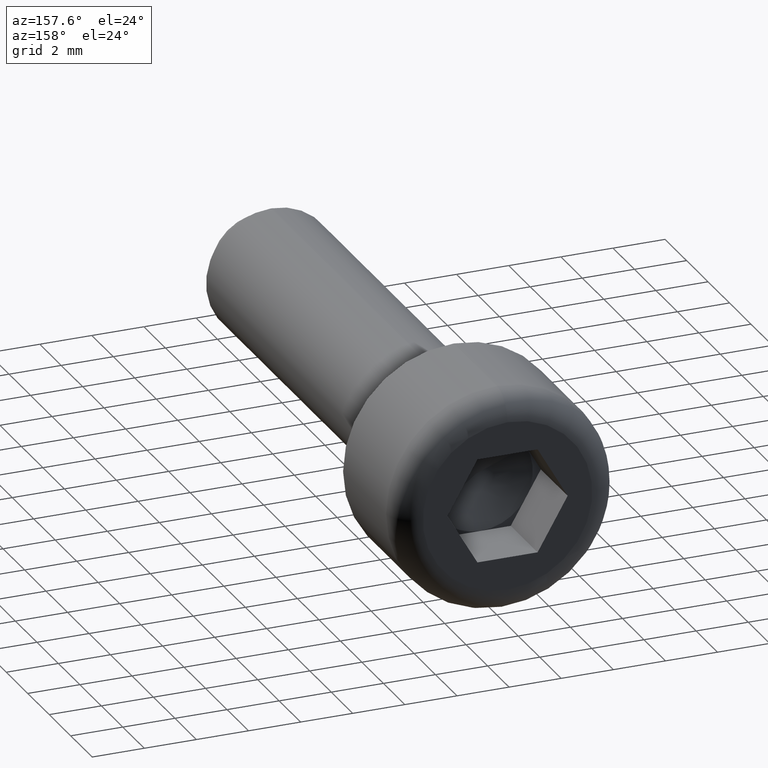
[diagram: clean part render]
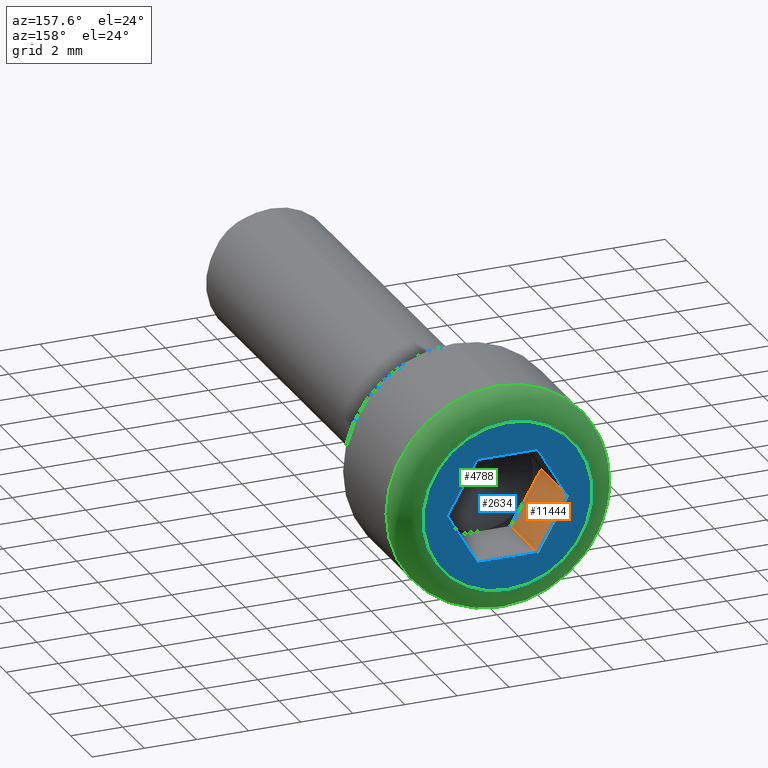
[diagram: same view with three faces highlighted in distinct colors, each labeled with its STEP entity id]
A machine part, auxiliary view with three faces highlighted in distinct colors.
Their STEP definitions:

[orange] entity #11444 — the highlighted planar face has unit normal (-0.866, 0, -0.5).
#218 = DIRECTION ( 'NONE',  ( -0.5000000000000001100, 0.0000000000000000000, 0.8660254037844384900 ) ) ;
#909 = LINE ( 'NONE', #4872, #3422 ) ;
#960 = VERTEX_POINT ( 'NONE', #7453 ) ;
#1403 = CARTESIAN_POINT ( 'NONE',  ( -2.309401076758503400, 2.500000000000000000, -4.369770171795340300E-016 ) ) ;
#2224 = CARTESIAN_POINT ( 'NONE',  ( -1.154700538379251700, 2.500000000000000000, -2.000000000000000000 ) ) ;
#2790 = CARTESIAN_POINT ( 'NONE',  ( -1.732050807568877000, 2.499999999999996900, -1.000000000000000200 ) ) ;
#3422 = VECTOR ( 'NONE', #7286, 1000.000000000000200 ) ;
#3601 = LINE ( 'NONE', #2224, #7728 ) ;
#4149 = ORIENTED_EDGE ( 'NONE', *, *, #10570, .F. ) ;
#4674 = DIRECTION ( 'NONE',  ( -0.5000000000000001100, 0.0000000000000000000, 0.8660254037844384900 ) ) ;
#4872 = CARTESIAN_POINT ( 'NONE',  ( -1.154700538379251700, 5.000000000000000000, -2.000000000000000000 ) ) ;
#5306 = CARTESIAN_POINT ( 'NONE',  ( -1.154700538379251700, 2.500000000000000000, -2.000000000000000000 ) ) ;
#5507 = CARTESIAN_POINT ( 'NONE',  ( -1.154700538379251700, 2.500000000000000000, -2.000000000000000000 ) ) ;
#6298 = AXIS2_PLACEMENT_3D ( 'NONE', #5306, #15351, #13994 ) ;
#6488 = CARTESIAN_POINT ( 'NONE',  ( -1.154700538379251700, 2.500000000000000000, -2.000000000000000000 ) ) ;
#6663 = PLANE ( 'NONE',  #6298 ) ;
#6702 = ORIENTED_EDGE ( 'NONE', *, *, #12668, .T. ) ;
#7286 = DIRECTION ( 'NONE',  ( -0.5000000000000001100, 0.0000000000000000000, 0.8660254037844384900 ) ) ;
#7453 = CARTESIAN_POINT ( 'NONE',  ( -2.309401076758503400, 5.000000000000000000, -4.369770171795340300E-016 ) ) ;
#7728 = VECTOR ( 'NONE', #4674, 1000.000000000000200 ) ;
#7754 = EDGE_CURVE ( 'NONE', #15224, #960, #9740, .T. ) ;
#7759 = VECTOR ( 'NONE', #218, 1000.000000000000200 ) ;
#7800 = VERTEX_POINT ( 'NONE', #8200 ) ;
#7913 = VECTOR ( 'NONE', #15603, 1000.000000000000000 ) ;
#7994 = VECTOR ( 'NONE', #10561, 1000.000000000000000 ) ;
#8200 = CARTESIAN_POINT ( 'NONE',  ( -1.154700538379251700, 2.500000000000000000, -2.000000000000000000 ) ) ;
#9456 = CARTESIAN_POINT ( 'NONE',  ( -2.309401076758503400, 2.500000000000000000, -4.369770171795340300E-016 ) ) ;
#9740 = LINE ( 'NONE', #9456, #7994 ) ;
#9888 = ORIENTED_EDGE ( 'NONE', *, *, #11750, .T. ) ;
#10480 = CARTESIAN_POINT ( 'NONE',  ( -1.154700538379251700, 5.000000000000000000, -2.000000000000000000 ) ) ;
#10561 = DIRECTION ( 'NONE',  ( -0.0000000000000000000, 1.000000000000000000, -0.0000000000000000000 ) ) ;
#10570 = EDGE_CURVE ( 'NONE', #13285, #15224, #12247, .T. ) ;
#10597 = ORIENTED_EDGE ( 'NONE', *, *, #7754, .F. ) ;
#11227 = LINE ( 'NONE', #5507, #7913 ) ;
#11444 = ADVANCED_FACE ( 'NONE', ( #14534 ), #6663, .F. ) ;
#11750 = EDGE_CURVE ( 'NONE', #14991, #960, #909, .T. ) ;
#12209 = ORIENTED_EDGE ( 'NONE', *, *, #12385, .F. ) ;
#12247 = LINE ( 'NONE', #6488, #7759 ) ;
#12385 = EDGE_CURVE ( 'NONE', #7800, #13285, #3601, .T. ) ;
#12668 = EDGE_CURVE ( 'NONE', #7800, #14991, #11227, .T. ) ;
#13285 = VERTEX_POINT ( 'NONE', #2790 ) ;
#13298 = EDGE_LOOP ( 'NONE', ( #9888, #10597, #4149, #12209, #6702 ) ) ;
#13994 = DIRECTION ( 'NONE',  ( -0.5000000000000002200, 0.0000000000000000000, 0.8660254037844384900 ) ) ;
#14534 = FACE_OUTER_BOUND ( 'NONE', #13298, .T. ) ;
#14991 = VERTEX_POINT ( 'NONE', #10480 ) ;
#15224 = VERTEX_POINT ( 'NONE', #1403 ) ;
#15351 = DIRECTION ( 'NONE',  ( -0.8660254037844386000, 0.0000000000000000000, -0.5000000000000003300 ) ) ;
#15603 = DIRECTION ( 'NONE',  ( -0.0000000000000000000, 1.000000000000000000, -0.0000000000000000000 ) ) ;

[blue] entity #2634 — the highlighted planar face has unit normal (0, 1, 0).
#264 = CARTESIAN_POINT ( 'NONE',  ( 0.0000000000000000000, 5.000000000000000000, 0.0000000000000000000 ) ) ;
#437 = CARTESIAN_POINT ( 'NONE',  ( 0.0000000000000000000, 5.000000000000000000, 3.250000000000000400 ) ) ;
#909 = LINE ( 'NONE', #4872, #3422 ) ;
#960 = VERTEX_POINT ( 'NONE', #7453 ) ;
#1654 = VERTEX_POINT ( 'NONE', #437 ) ;
#1670 = VECTOR ( 'NONE', #5059, 1000.000000000000200 ) ;
#2090 = EDGE_CURVE ( 'NONE', #9695, #9819, #5461, .T. ) ;
#2251 = DIRECTION ( 'NONE',  ( 0.5000000000000002200, 0.0000000000000000000, 0.8660254037844386000 ) ) ;
#2634 = ADVANCED_FACE ( 'NONE', ( #5666, #12867 ), #12466, .T. ) ;
#2838 = ORIENTED_EDGE ( 'NONE', *, *, #2090, .F. ) ;
#3103 = LINE ( 'NONE', #4794, #4850 ) ;
#3381 = VERTEX_POINT ( 'NONE', #9967 ) ;
#3422 = VECTOR ( 'NONE', #7286, 1000.000000000000200 ) ;
#3518 = ORIENTED_EDGE ( 'NONE', *, *, #10987, .F. ) ;
#4384 = LINE ( 'NONE', #8754, #1670 ) ;
#4390 = EDGE_CURVE ( 'NONE', #3381, #14991, #13245, .T. ) ;
#4405 = EDGE_CURVE ( 'NONE', #1654, #1654, #9905, .T. ) ;
#4794 = CARTESIAN_POINT ( 'NONE',  ( -1.154700538379251000, 5.000000000000000000, 2.000000000000000000 ) ) ;
#4850 = VECTOR ( 'NONE', #13633, 1000.000000000000000 ) ;
#4872 = CARTESIAN_POINT ( 'NONE',  ( -1.154700538379251700, 5.000000000000000000, -2.000000000000000000 ) ) ;
#5059 = DIRECTION ( 'NONE',  ( -0.5000000000000001100, 0.0000000000000000000, -0.8660254037844384900 ) ) ;
#5124 = DIRECTION ( 'NONE',  ( 0.5000000000000001100, 0.0000000000000000000, -0.8660254037844384900 ) ) ;
#5237 = ORIENTED_EDGE ( 'NONE', *, *, #15144, .F. ) ;
#5412 = ORIENTED_EDGE ( 'NONE', *, *, #4405, .T. ) ;
#5461 = LINE ( 'NONE', #10082, #10909 ) ;
#5666 = FACE_BOUND ( 'NONE', #6566, .T. ) ;
#6214 = CARTESIAN_POINT ( 'NONE',  ( -1.154700538379251000, 5.000000000000000000, 2.000000000000000000 ) ) ;
#6566 = EDGE_LOOP ( 'NONE', ( #7494, #3518, #7768, #13869, #5237, #2838 ) ) ;
#6975 = LINE ( 'NONE', #8513, #11259 ) ;
#6989 = VERTEX_POINT ( 'NONE', #6214 ) ;
#7286 = DIRECTION ( 'NONE',  ( -0.5000000000000001100, 0.0000000000000000000, 0.8660254037844384900 ) ) ;
#7321 = CARTESIAN_POINT ( 'NONE',  ( 1.154700538379250800, 5.000000000000000000, -2.000000000000000400 ) ) ;
#7453 = CARTESIAN_POINT ( 'NONE',  ( -2.309401076758503400, 5.000000000000000000, -4.369770171795340300E-016 ) ) ;
#7494 = ORIENTED_EDGE ( 'NONE', *, *, #7973, .F. ) ;
#7652 = DIRECTION ( 'NONE',  ( 0.0000000000000000000, 1.000000000000000000, 0.0000000000000000000 ) ) ;
#7768 = ORIENTED_EDGE ( 'NONE', *, *, #11750, .F. ) ;
#7862 = AXIS2_PLACEMENT_3D ( 'NONE', #264, #10180, #8916 ) ;
#7973 = EDGE_CURVE ( 'NONE', #6989, #9695, #3103, .T. ) ;
#8513 = CARTESIAN_POINT ( 'NONE',  ( -2.309401076758503400, 5.000000000000000000, -4.369770171795340300E-016 ) ) ;
#8662 = DIRECTION ( 'NONE',  ( 0.0000000000000000000, 0.0000000000000000000, 1.000000000000000000 ) ) ;
#8754 = CARTESIAN_POINT ( 'NONE',  ( 2.309401076758503400, 5.000000000000000000, 2.540179005726034300E-016 ) ) ;
#8916 = DIRECTION ( 'NONE',  ( 0.0000000000000000000, -0.0000000000000000000, 1.000000000000000000 ) ) ;
#8963 = CARTESIAN_POINT ( 'NONE',  ( 2.309401076758503400, 5.000000000000000000, 2.540179005726034300E-016 ) ) ;
#9603 = CARTESIAN_POINT ( 'NONE',  ( 1.154700538379252100, 5.000000000000000000, 2.000000000000000000 ) ) ;
#9695 = VERTEX_POINT ( 'NONE', #9603 ) ;
#9819 = VERTEX_POINT ( 'NONE', #8963 ) ;
#9905 = CIRCLE ( 'NONE', #10132, 3.250000000000000400 ) ;
#9967 = CARTESIAN_POINT ( 'NONE',  ( 1.154700538379250800, 5.000000000000000000, -2.000000000000000400 ) ) ;
#10082 = CARTESIAN_POINT ( 'NONE',  ( 1.154700538379251700, 5.000000000000000000, 2.000000000000000000 ) ) ;
#10132 = AXIS2_PLACEMENT_3D ( 'NONE', #12500, #7652, #8662 ) ;
#10180 = DIRECTION ( 'NONE',  ( 0.0000000000000000000, 1.000000000000000000, 0.0000000000000000000 ) ) ;
#10480 = CARTESIAN_POINT ( 'NONE',  ( -1.154700538379251700, 5.000000000000000000, -2.000000000000000000 ) ) ;
#10909 = VECTOR ( 'NONE', #5124, 1000.000000000000200 ) ;
#10987 = EDGE_CURVE ( 'NONE', #960, #6989, #6975, .T. ) ;
#11259 = VECTOR ( 'NONE', #2251, 999.9999999999998900 ) ;
#11750 = EDGE_CURVE ( 'NONE', #14991, #960, #909, .T. ) ;
#12335 = DIRECTION ( 'NONE',  ( -1.000000000000000000, 0.0000000000000000000, 1.877893248421449800E-016 ) ) ;
#12466 = PLANE ( 'NONE',  #7862 ) ;
#12500 = CARTESIAN_POINT ( 'NONE',  ( 0.0000000000000000000, 5.000000000000000000, 0.0000000000000000000 ) ) ;
#12867 = FACE_OUTER_BOUND ( 'NONE', #15787, .T. ) ;
#12869 = VECTOR ( 'NONE', #12335, 1000.000000000000000 ) ;
#13245 = LINE ( 'NONE', #7321, #12869 ) ;
#13633 = DIRECTION ( 'NONE',  ( 1.000000000000000000, 0.0000000000000000000, 0.0000000000000000000 ) ) ;
#13869 = ORIENTED_EDGE ( 'NONE', *, *, #4390, .F. ) ;
#14991 = VERTEX_POINT ( 'NONE', #10480 ) ;
#15144 = EDGE_CURVE ( 'NONE', #9819, #3381, #4384, .T. ) ;
#15787 = EDGE_LOOP ( 'NONE', ( #5412 ) ) ;

[green] entity #4788 — the highlighted toroidal blend (fillet) surface has major radius 3.25 mm and minor (blend) radius 1 mm.
#437 = CARTESIAN_POINT ( 'NONE',  ( 0.0000000000000000000, 5.000000000000000000, 3.250000000000000400 ) ) ;
#1654 = VERTEX_POINT ( 'NONE', #437 ) ;
#2125 = DIRECTION ( 'NONE',  ( 0.0000000000000000000, 0.0000000000000000000, 1.000000000000000000 ) ) ;
#2271 = CARTESIAN_POINT ( 'NONE',  ( 0.0000000000000000000, 4.000000000000000000, 0.0000000000000000000 ) ) ;
#2779 = DIRECTION ( 'NONE',  ( 0.0000000000000000000, 1.000000000000000000, 0.0000000000000000000 ) ) ;
#3076 = FACE_OUTER_BOUND ( 'NONE', #5485, .T. ) ;
#4403 = CIRCLE ( 'NONE', #8572, 4.250000000000000000 ) ;
#4405 = EDGE_CURVE ( 'NONE', #1654, #1654, #9905, .T. ) ;
#4788 = ADVANCED_FACE ( 'NONE', ( #6408, #3076 ), #12078, .T. ) ;
#5233 = CARTESIAN_POINT ( 'NONE',  ( 0.0000000000000000000, 4.000000000000000000, 4.250000000000000000 ) ) ;
#5485 = EDGE_LOOP ( 'NONE', ( #14782 ) ) ;
#6408 = FACE_OUTER_BOUND ( 'NONE', #6678, .T. ) ;
#6678 = EDGE_LOOP ( 'NONE', ( #15420 ) ) ;
#7652 = DIRECTION ( 'NONE',  ( 0.0000000000000000000, 1.000000000000000000, 0.0000000000000000000 ) ) ;
#8572 = AXIS2_PLACEMENT_3D ( 'NONE', #2271, #10852, #2125 ) ;
#8662 = DIRECTION ( 'NONE',  ( 0.0000000000000000000, 0.0000000000000000000, 1.000000000000000000 ) ) ;
#9905 = CIRCLE ( 'NONE', #10132, 3.250000000000000400 ) ;
#10132 = AXIS2_PLACEMENT_3D ( 'NONE', #12500, #7652, #8662 ) ;
#10307 = DIRECTION ( 'NONE',  ( 0.0000000000000000000, 0.0000000000000000000, 1.000000000000000000 ) ) ;
#10852 = DIRECTION ( 'NONE',  ( -0.0000000000000000000, -1.000000000000000000, -0.0000000000000000000 ) ) ;
#12078 = TOROIDAL_SURFACE ( 'NONE', #14585, 3.250000000000000400, 1.000000000000000000 ) ;
#12448 = EDGE_CURVE ( 'NONE', #12790, #12790, #4403, .T. ) ;
#12500 = CARTESIAN_POINT ( 'NONE',  ( 0.0000000000000000000, 5.000000000000000000, 0.0000000000000000000 ) ) ;
#12790 = VERTEX_POINT ( 'NONE', #5233 ) ;
#13881 = CARTESIAN_POINT ( 'NONE',  ( 0.0000000000000000000, 4.000000000000000000, 0.0000000000000000000 ) ) ;
#14585 = AXIS2_PLACEMENT_3D ( 'NONE', #13881, #2779, #10307 ) ;
#14782 = ORIENTED_EDGE ( 'NONE', *, *, #4405, .F. ) ;
#15420 = ORIENTED_EDGE ( 'NONE', *, *, #12448, .F. ) ;